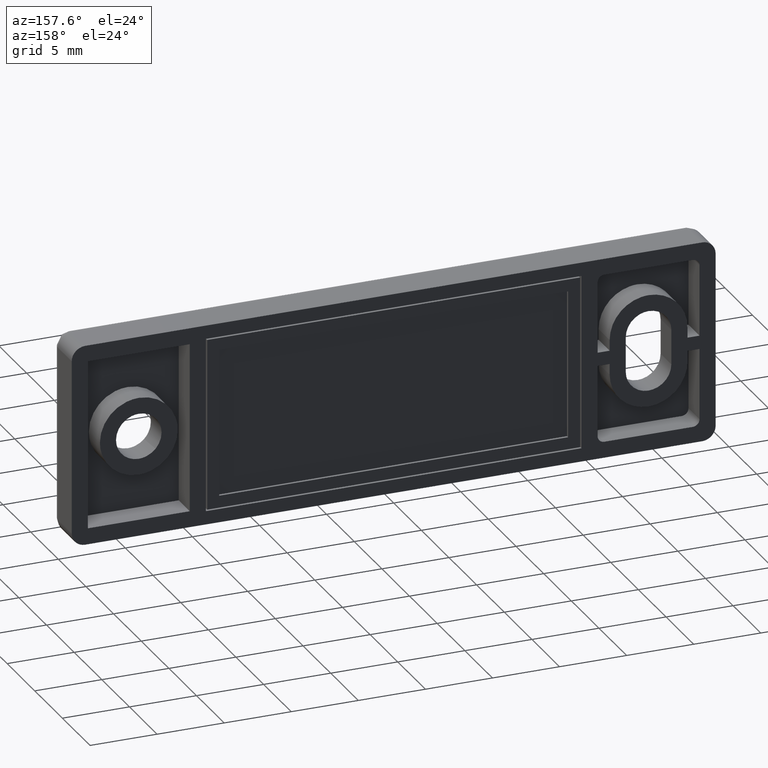
[diagram: clean part render]
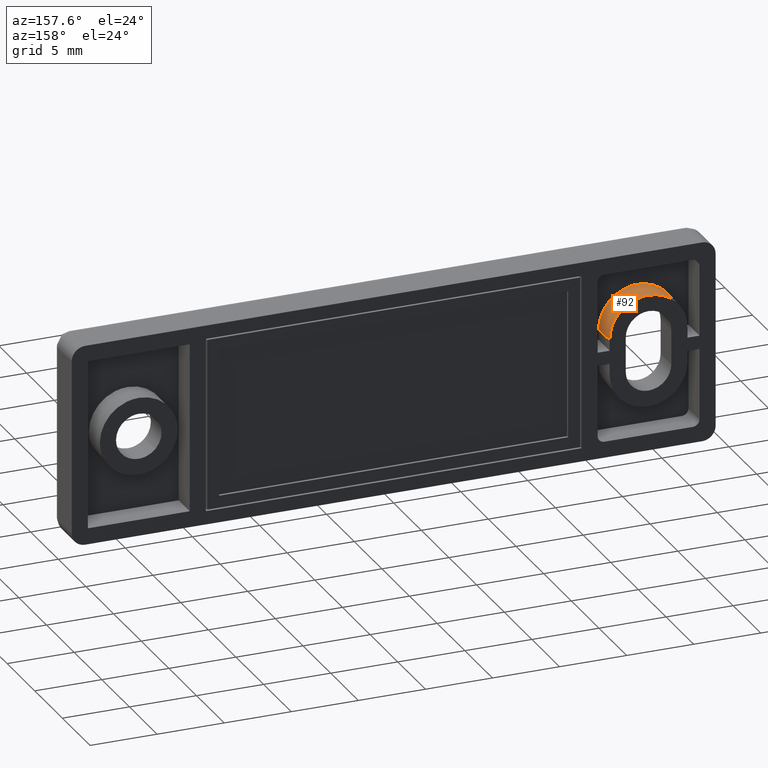
[diagram: same view with one face highlighted and labeled with its STEP entity id]
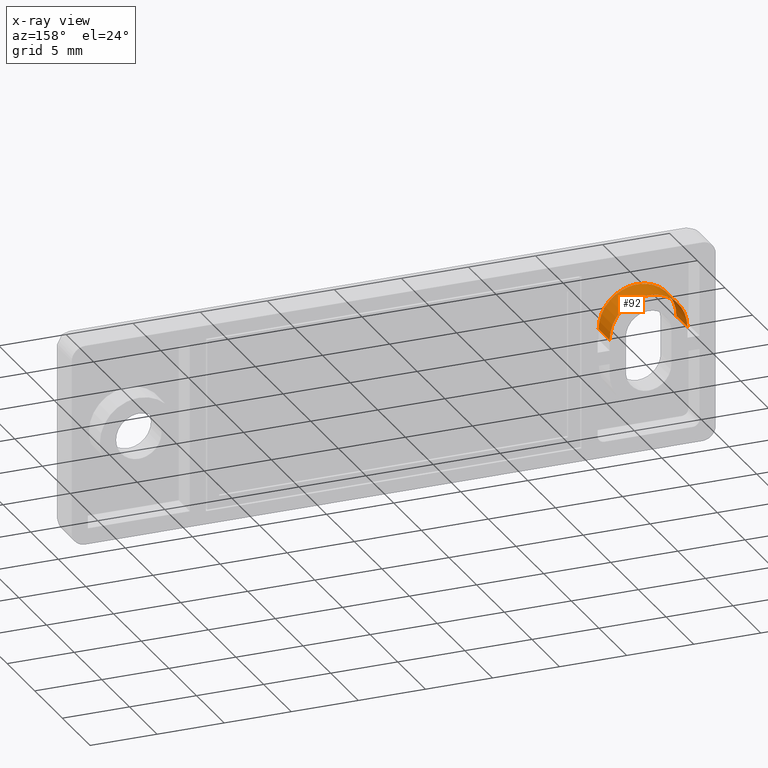
[diagram: x-ray of the same camera — body ghosted, the highlighted face saturated]
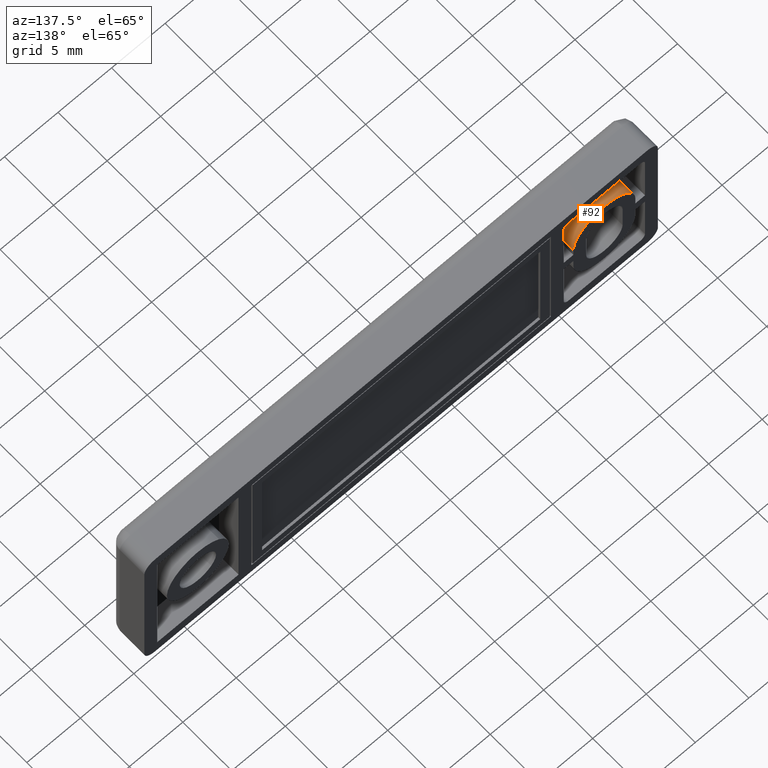
[diagram: same view with one face highlighted and labeled with its STEP entity id]
A machine part, auxiliary view. The second image highlights one B-rep face of the part: STEP entity #92.
The next image is the same camera in x-ray: the body ghosted, the highlighted face saturated — about 0% of this face is hidden behind the body in this view.
A second angle (auxiliary view) of the same face is appended — the face is thin or edge-on in the first view.
In plain terms, the highlighted cylindrical surface (partial cylindrical patch) has radius 2.9 mm, axis along (0, 1, 0).
Its self-contained STEP definition (entity closure, byte-faithful):
#92=ADVANCED_FACE('',(#323),#322,.T.);
#322=CYLINDRICAL_SURFACE('',#1021,2.90000000000E+00);
#323=FACE_OUTER_BOUND('',#1022,.T.);
#1018=CARTESIAN_POINT('',(-1.90000000000E+01,5.12500000000E-02,1.30000000000E+00));
#1019=DIRECTION('',(-0.00000000000E+00,1.00000000000E+00,-0.00000000000E+00));
#1020=DIRECTION('',(8.72653549837E-03,0.00000000000E+00,-9.99961923064E-01));
#1021=AXIS2_PLACEMENT_3D('',#1018,#1019,#1020);
#1022=EDGE_LOOP('',(#1502,#1503,#1504,#1505,#1506,#1507));
#1502=ORIENTED_EDGE('',*,*,#1908,.T.);
#1503=ORIENTED_EDGE('',*,*,#1909,.T.);
#1504=ORIENTED_EDGE('',*,*,#1910,.F.);
#1505=ORIENTED_EDGE('',*,*,#1911,.F.);
#1506=ORIENTED_EDGE('',*,*,#1912,.F.);
#1507=ORIENTED_EDGE('',*,*,#1913,.T.);
#1908=EDGE_CURVE('',#2563,#2564,#2565,.T.);
#1909=EDGE_CURVE('',#2564,#2571,#2572,.T.);
#1910=EDGE_CURVE('',#2578,#2571,#2579,.T.);
#1911=EDGE_CURVE('',#2585,#2578,#2586,.T.);
#1912=EDGE_CURVE('',#2592,#2585,#2593,.T.);
#1913=EDGE_CURVE('',#2592,#2563,#2599,.T.);
#2563=VERTEX_POINT('',#3962);
#2564=VERTEX_POINT('',#3963);
#2565=(BOUNDED_CURVE() B_SPLINE_CURVE(3,(#3964,#3965,#3966,#3967,#3968,#3969,#3970,#3971,#3972,#3973,#3974),.UNSPECIFIED.,.F.,.F.) B_SPLINE_CURVE_WITH_KNOTS((4,1,1,1,1,1,1,1,4),(5.91998270000E-08,9.60888253216E-01,1.56590056350E+00,1.92178439983E+00,2.38442713349E+00,2.95384712954E+00,3.30973754065E+00,3.77239414398E+00,4.55533820070E+00),.UNSPECIFIED.) CURVE() GEOMETRIC_REPRESENTATION_ITEM() RATIONAL_B_SPLINE_CURVE((1.00000000000E+00,1.00000000000E+00,1.00000000000E+00,1.00000000000E+00,1.00000000000E+00,1.00000000000E+00,1.00000000000E+00,1.00000000000E+00,1.00000000000E+00,1.00000000000E+00,1.00000000000E+00)) REPRESENTATION_ITEM('') );
#2571=VERTEX_POINT('',#3975);
#2572=(BOUNDED_CURVE() B_SPLINE_CURVE(3,(#3976,#3977,#3978,#3979,#3980,#3981,#3982,#3983,#3984,#3985),.UNSPECIFIED.,.F.,.F.) B_SPLINE_CURVE_WITH_KNOTS((4,1,1,1,1,1,1,4),(5.93604230000E-08,8.54120411510E-01,1.35236640765E+00,2.02855385919E+00,2.70471864973E+00,3.27414666783E+00,3.77239369602E+00,4.55533765998E+00),.UNSPECIFIED.) CURVE() GEOMETRIC_REPRESENTATION_ITEM() RATIONAL_B_SPLINE_CURVE((1.00000000000E+00,1.00000000000E+00,1.00000000000E+00,1.00000000000E+00,1.00000000000E+00,1.00000000000E+00,1.00000000000E+00,1.00000000000E+00,1.00000000000E+00,1.00000000000E+00)) REPRESENTATION_ITEM('') );
#2578=VERTEX_POINT('',#3986);
#2579=LINE('',#3987,#3988);
#2585=VERTEX_POINT('',#3990);
#2586=(BOUNDED_CURVE() B_SPLINE_CURVE(3,(#3991,#3992,#3993,#3994,#3995,#3996,#3997,#3998,#3999,#4000),.UNSPECIFIED.,.F.,.F.) B_SPLINE_CURVE_WITH_KNOTS((4,1,1,1,1,1,1,4),(5.93604230000E-08,8.54120411510E-01,1.35236640765E+00,2.02855385919E+00,2.70471864973E+00,3.27414666783E+00,3.77239369602E+00,4.55533765998E+00),.UNSPECIFIED.) CURVE() GEOMETRIC_REPRESENTATION_ITEM() RATIONAL_B_SPLINE_CURVE((1.00000000000E+00,1.00000000000E+00,1.00000000000E+00,1.00000000000E+00,1.00000000000E+00,1.00000000000E+00,1.00000000000E+00,1.00000000000E+00,1.00000000000E+00,1.00000000000E+00)) REPRESENTATION_ITEM('') );
#2592=VERTEX_POINT('',#4001);
#2593=(BOUNDED_CURVE() B_SPLINE_CURVE(3,(#4002,#4003,#4004,#4005,#4006,#4007,#4008,#4009,#4010,#4011,#4012),.UNSPECIFIED.,.F.,.F.) B_SPLINE_CURVE_WITH_KNOTS((4,1,1,1,1,1,1,1,4),(5.91998270000E-08,9.60888253216E-01,1.56590056350E+00,1.92178439983E+00,2.38442713349E+00,2.95384712954E+00,3.30973754065E+00,3.77239414398E+00,4.55533820070E+00),.UNSPECIFIED.) CURVE() GEOMETRIC_REPRESENTATION_ITEM() RATIONAL_B_SPLINE_CURVE((1.00000000000E+00,1.00000000000E+00,1.00000000000E+00,1.00000000000E+00,1.00000000000E+00,1.00000000000E+00,1.00000000000E+00,1.00000000000E+00,1.00000000000E+00,1.00000000000E+00,1.00000000000E+00)) REPRESENTATION_ITEM('') );
#2599=LINE('',#4013,#4014);
#3962=CARTESIAN_POINT('',(-1.61000000000E+01,0.00000000000E+00,1.30000000000E+00));
#3963=CARTESIAN_POINT('',(-1.90000004797E+01,0.00000000000E+00,4.20000000000E+00));
#3964=CARTESIAN_POINT('',(-1.61000000000E+01,0.00000000000E+00,1.30000000000E+00));
#3965=CARTESIAN_POINT('',(-1.60998032735E+01,0.00000000000E+00,1.62032096295E+00));
#3966=CARTESIAN_POINT('',(-1.61873841901E+01,0.00000000000E+00,2.14214761833E+00));
#3967=CARTESIAN_POINT('',(-1.64592577549E+01,0.00000000000E+00,2.72605172834E+00));
#3968=CARTESIAN_POINT('',(-1.67282223289E+01,0.00000000000E+00,3.11805512514E+00));
#3969=CARTESIAN_POINT('',(-1.70419900848E+01,0.00000000000E+00,3.46004731776E+00));
#3970=CARTESIAN_POINT('',(-1.74119631408E+01,0.00000000000E+00,3.74152967400E+00));
#3971=CARTESIAN_POINT('',(-1.78207645759E+01,0.00000000000E+00,3.96001988632E+00));
#3972=CARTESIAN_POINT('',(-1.83238623865E+01,0.00000000000E+00,4.14356154779E+00));
#3973=CARTESIAN_POINT('',(-1.87390107037E+01,0.00000000000E+00,4.20008696002E+00));
#3974=CARTESIAN_POINT('',(-1.90000004797E+01,0.00000000000E+00,4.20000000000E+00));
#3975=CARTESIAN_POINT('',(-2.19000000000E+01,0.00000000000E+00,1.30000000000E+00));
#3976=CARTESIAN_POINT('',(-1.90000004797E+01,0.00000000000E+00,4.20000000000E+00));
#3977=CARTESIAN_POINT('',(-1.92847213555E+01,0.00000000000E+00,4.20012454495E+00));
#3978=CARTESIAN_POINT('',(-1.97354276711E+01,0.00000000000E+00,4.13305957033E+00));
#3979=CARTESIAN_POINT('',(-2.03655914098E+01,0.00000000000E+00,3.88103279213E+00));
#3980=CARTESIAN_POINT('',(-2.08841159543E+01,0.00000000000E+00,3.53919975369E+00));
#3981=CARTESIAN_POINT('',(-2.13259534149E+01,0.00000000000E+00,3.06935696882E+00));
#3982=CARTESIAN_POINT('',(-2.16262030676E+01,0.00000000000E+00,2.56835049052E+00));
#3983=CARTESIAN_POINT('',(-2.18419332315E+01,0.00000000000E+00,1.98799658354E+00));
#3984=CARTESIAN_POINT('',(-2.19000979714E+01,0.00000000000E+00,1.56099148855E+00));
#3985=CARTESIAN_POINT('',(-2.19000000000E+01,0.00000000000E+00,1.30000000000E+00));
#3986=CARTESIAN_POINT('',(-2.19000000000E+01,-2.00000000000E+00,1.30000000000E+00));
#3987=CARTESIAN_POINT('',(-2.19000000000E+01,-2.00000000000E+00,1.30000000000E+00));
#3988=VECTOR('',#3989,2.00000000000E+00);
#3989=DIRECTION('',(0.00000000000E+00,1.00000000000E+00,0.00000000000E+00));
#3990=CARTESIAN_POINT('',(-1.90000004797E+01,-2.00000000000E+00,4.20000000000E+00));
#3991=CARTESIAN_POINT('',(-1.90000004797E+01,-2.00000000000E+00,4.20000000000E+00));
#3992=CARTESIAN_POINT('',(-1.92847213555E+01,-2.00000000000E+00,4.20012454495E+00));
#3993=CARTESIAN_POINT('',(-1.97354276711E+01,-2.00000000000E+00,4.13305957033E+00));
#3994=CARTESIAN_POINT('',(-2.03655914098E+01,-2.00000000000E+00,3.88103279213E+00));
#3995=CARTESIAN_POINT('',(-2.08841159543E+01,-2.00000000000E+00,3.53919975369E+00));
#3996=CARTESIAN_POINT('',(-2.13259534149E+01,-2.00000000000E+00,3.06935696882E+00));
#3997=CARTESIAN_POINT('',(-2.16262030676E+01,-2.00000000000E+00,2.56835049052E+00));
#3998=CARTESIAN_POINT('',(-2.18419332315E+01,-2.00000000000E+00,1.98799658354E+00));
#3999=CARTESIAN_POINT('',(-2.19000979714E+01,-2.00000000000E+00,1.56099148855E+00));
#4000=CARTESIAN_POINT('',(-2.19000000000E+01,-2.00000000000E+00,1.30000000000E+00));
#4001=CARTESIAN_POINT('',(-1.61000000000E+01,-2.00000000000E+00,1.30000000000E+00));
#4002=CARTESIAN_POINT('',(-1.61000000000E+01,-2.00000000000E+00,1.30000000000E+00));
#4003=CARTESIAN_POINT('',(-1.60998032735E+01,-2.00000000000E+00,1.62032096295E+00));
#4004=CARTESIAN_POINT('',(-1.61873841901E+01,-2.00000000000E+00,2.14214761833E+00));
#4005=CARTESIAN_POINT('',(-1.64592577549E+01,-2.00000000000E+00,2.72605172834E+00));
#4006=CARTESIAN_POINT('',(-1.67282223289E+01,-2.00000000000E+00,3.11805512514E+00));
#4007=CARTESIAN_POINT('',(-1.70419900848E+01,-2.00000000000E+00,3.46004731776E+00));
#4008=CARTESIAN_POINT('',(-1.74119631408E+01,-2.00000000000E+00,3.74152967400E+00));
#4009=CARTESIAN_POINT('',(-1.78207645759E+01,-2.00000000000E+00,3.96001988632E+00));
#4010=CARTESIAN_POINT('',(-1.83238623865E+01,-2.00000000000E+00,4.14356154779E+00));
#4011=CARTESIAN_POINT('',(-1.87390107037E+01,-2.00000000000E+00,4.20008696002E+00));
#4012=CARTESIAN_POINT('',(-1.90000004797E+01,-2.00000000000E+00,4.20000000000E+00));
#4013=CARTESIAN_POINT('',(-1.61000000000E+01,-2.00000000000E+00,1.30000000000E+00));
#4014=VECTOR('',#4015,2.00000000000E+00);
#4015=DIRECTION('',(0.00000000000E+00,1.00000000000E+00,0.00000000000E+00));